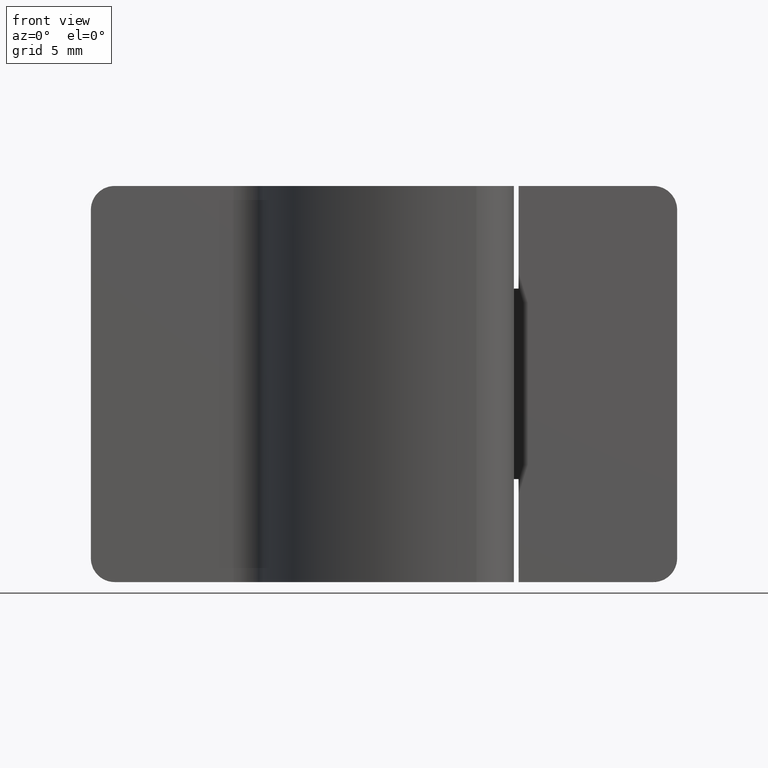
[diagram: clean part render]
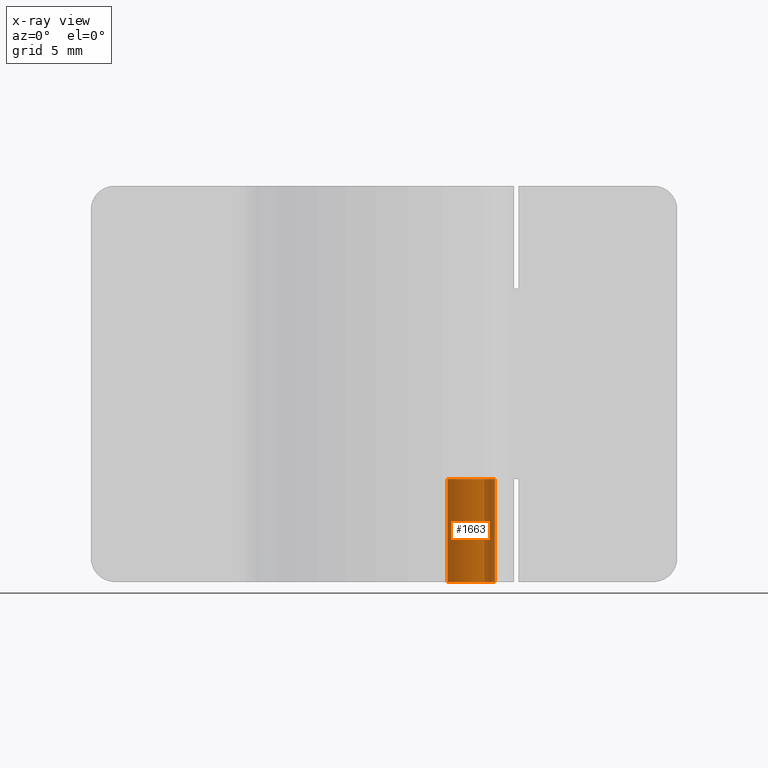
[diagram: x-ray — body ghosted, one internal face saturated and labeled with its STEP entity id]
A machine part, front view, then the same camera in x-ray: the body is ghosted and one INTERNAL B-rep face — a face not visible from any outside direction — is saturated and labeled: STEP entity #1663.
In plain terms, the highlighted face is a freeform B-spline surface patch.
Its self-contained STEP definition (entity closure, byte-faithful):
#883=CARTESIAN_POINT('',(0.805555555555611,-1.265337997103340,6.500000000000000));
#884=VERTEX_POINT('',#883);
#890=CARTESIAN_POINT('',(1.500000000000000,3.673819E-016,6.500000000000000));
#891=VERTEX_POINT('',#890);
#892=CARTESIAN_POINT('',(0.805555555555611,-1.265337997103339,6.500000000000000));
#893=CARTESIAN_POINT('',(-0.176304541715746,-1.890422249647697,6.500000000000000));
#894=CARTESIAN_POINT('',(-1.025644030195455,-1.094556678899921,6.500000000000000));
#895=CARTESIAN_POINT('',(-1.874983518675165,-0.298691108152145,6.500000000000000));
#896=CARTESIAN_POINT('',(-1.314977819838308,0.721687836487004,6.500000000000000));
#897=CARTESIAN_POINT('',(-0.754972121001450,1.742066781126151,6.500000000000000));
#898=CARTESIAN_POINT('',(0.372513939499275,1.453008384311230,6.500000000000000));
#899=CARTESIAN_POINT('',(1.500000000000001,1.163949987496309,6.500000000000000));
#900=CARTESIAN_POINT('',(1.500000000000000,0.0,6.500000000000000));
#908=(BOUNDED_CURVE()B_SPLINE_CURVE(2,(#892,#893,#894,#895,#896,#897,#898,#899,#900),.UNSPECIFIED.,.F.,.U.)B_SPLINE_CURVE_WITH_KNOTS((3,2,2,2,3),(0.0,0.250000000000000,0.500000000000000,0.750000000000000,1.0),.UNSPECIFIED.)CURVE()GEOMETRIC_REPRESENTATION_ITEM()RATIONAL_B_SPLINE_CURVE((1.0,0.790045133626190,1.0,0.790045133626190,1.0,0.790045133626190,1.0,0.790045133626190,1.0))REPRESENTATION_ITEM(''));
#909=EDGE_CURVE('',#884,#891,#908,.T.);
#1385=CARTESIAN_POINT('',(1.500000000000000,3.673819E-016,0.0));
#1386=VERTEX_POINT('',#1385);
#1392=CARTESIAN_POINT('',(0.805555555555611,-1.265337997103340,0.0));
#1393=VERTEX_POINT('',#1392);
#1394=CARTESIAN_POINT('',(0.805555555555611,-1.265337997103339,0.0));
#1395=CARTESIAN_POINT('',(-0.176304541715746,-1.890422249647697,0.0));
#1396=CARTESIAN_POINT('',(-1.025644030195455,-1.094556678899921,0.0));
#1397=CARTESIAN_POINT('',(-1.874983518675165,-0.298691108152145,0.0));
#1398=CARTESIAN_POINT('',(-1.314977819838308,0.721687836487003,0.0));
#1399=CARTESIAN_POINT('',(-0.754972121001450,1.742066781126151,0.0));
#1400=CARTESIAN_POINT('',(0.372513939499275,1.453008384311230,0.0));
#1401=CARTESIAN_POINT('',(1.500000000000001,1.163949987496309,0.0));
#1402=CARTESIAN_POINT('',(1.500000000000000,0.0,0.0));
#1410=(BOUNDED_CURVE()B_SPLINE_CURVE(2,(#1394,#1395,#1396,#1397,#1398,#1399,#1400,#1401,#1402),.UNSPECIFIED.,.F.,.U.)B_SPLINE_CURVE_WITH_KNOTS((3,2,2,2,3),(0.0,0.250000000000000,0.500000000000000,0.750000000000000,1.0),.UNSPECIFIED.)CURVE()GEOMETRIC_REPRESENTATION_ITEM()RATIONAL_B_SPLINE_CURVE((1.0,0.790045133626190,1.0,0.790045133626190,1.0,0.790045133626190,1.0,0.790045133626190,1.0))REPRESENTATION_ITEM(''));
#1411=EDGE_CURVE('',#1393,#1386,#1410,.T.);
#1615=CARTESIAN_POINT('',(1.500000000000000,3.673819E-016,0.0));
#1616=CARTESIAN_POINT('',(1.500000000000000,3.673819E-016,6.500000000000000));
#1617=QUASI_UNIFORM_CURVE('',1,(#1615,#1616),.UNSPECIFIED.,.F.,.U.);
#1618=EDGE_CURVE('',#1386,#891,#1617,.T.);
#1631=CARTESIAN_POINT('',(0.838402199128084,-1.243817411237353,-0.162500000000000));
#1632=CARTESIAN_POINT('',(0.838402199128084,-1.243817411237353,6.666562500000001));
#1633=CARTESIAN_POINT('',(-0.706752989755624,-2.285338052973299,-0.162500000000000));
#1634=CARTESIAN_POINT('',(-0.706752989755624,-2.285338052973299,6.666562500000000));
#1635=CARTESIAN_POINT('',(-1.394193617977119,-0.553375239409815,-0.162500000000000));
#1636=CARTESIAN_POINT('',(-1.394193617977119,-0.553375239409815,6.666562500000001));
#1637=CARTESIAN_POINT('',(-2.081634246198613,1.178587574153670,-0.162500000000000));
#1638=CARTESIAN_POINT('',(-2.081634246198613,1.178587574153670,6.666562500000000));
#1639=CARTESIAN_POINT('',(-0.242806108928192,1.480217954717193,-0.162500000000000));
#1640=CARTESIAN_POINT('',(-0.242806108928192,1.480217954717193,6.666562500000001));
#1641=CARTESIAN_POINT('',(1.596022028342230,1.781848335280716,-0.162500000000000));
#1642=CARTESIAN_POINT('',(1.596022028342230,1.781848335280716,6.666562500000000));
#1643=CARTESIAN_POINT('',(1.497919791508243,-0.078970236215300,-0.162500000000000));
#1644=CARTESIAN_POINT('',(1.497919791508243,-0.078970236215300,6.666562500000001));
#1652=(BOUNDED_SURFACE()B_SPLINE_SURFACE(1,2,((#1631,#1633,#1635,#1637,#1639,#1641,#1643),(#1632,#1634,#1636,#1638,#1640,#1642,#1644)),.UNSPECIFIED.,.F.,.F.,.U.)B_SPLINE_SURFACE_WITH_KNOTS((2,2),(3,2,2,3),(0.0,6.829062500000002),(0.0,2.872572647849120,5.745145295698240,8.617717943547360),.UNSPECIFIED.)GEOMETRIC_REPRESENTATION_ITEM()RATIONAL_B_SPLINE_SURFACE(((1.0,0.627057105746662,1.0,0.627057105746662,1.0,0.627057105746662,1.0),(1.0,0.627057105746662,1.0,0.627057105746662,1.0,0.627057105746662,1.0)))REPRESENTATION_ITEM('')SURFACE());
#1653=ORIENTED_EDGE('',*,*,#909,.F.);
#1654=CARTESIAN_POINT('',(0.805555555555611,-1.265337997103340,0.0));
#1655=CARTESIAN_POINT('',(0.805555555555611,-1.265337997103340,6.500000000000000));
#1656=QUASI_UNIFORM_CURVE('',1,(#1654,#1655),.UNSPECIFIED.,.F.,.U.);
#1657=EDGE_CURVE('',#1393,#884,#1656,.T.);
#1658=ORIENTED_EDGE('',*,*,#1657,.F.);
#1659=ORIENTED_EDGE('',*,*,#1411,.T.);
#1660=ORIENTED_EDGE('',*,*,#1618,.T.);
#1661=EDGE_LOOP('',(#1653,#1658,#1659,#1660));
#1662=FACE_OUTER_BOUND('',#1661,.T.);
#1663=ADVANCED_FACE('',(#1662),#1652,.F.);